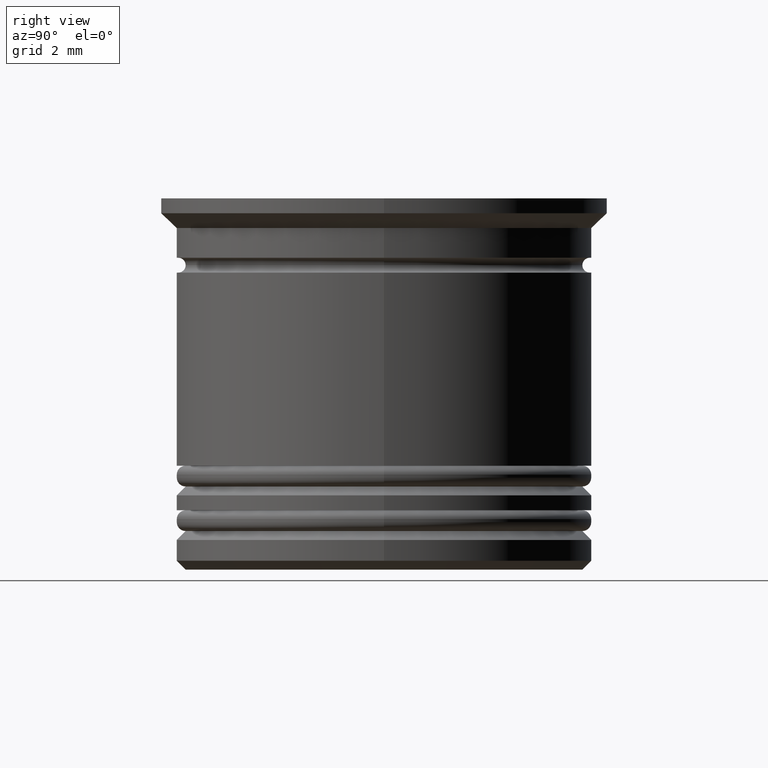
[diagram: clean part render]
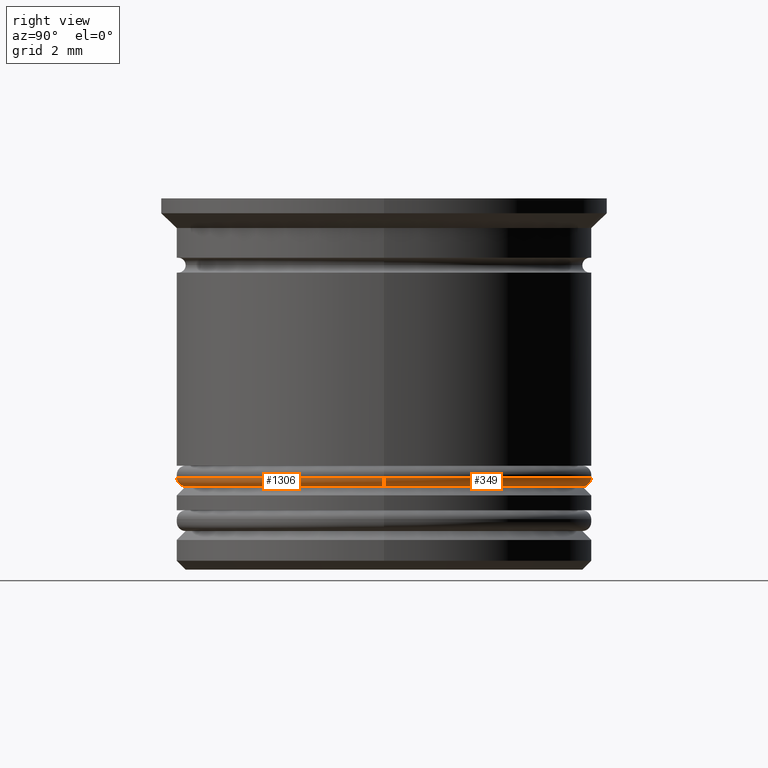
[diagram: same view with one multi-face feature highlighted, each face labeled with its STEP entity id]
A machine part, right view. The highlighted faces form ONE feature: a constant-radius fillet chain: 2 tangent blend faces with common blend radius 0.3 mm. The faces share edges in the B-rep.
Their STEP definitions:
[1] entity #349 (Torus):
#55 = EDGE_CURVE ( 'NONE', #867, #1171, #1804, .T. ) ;
#67 = CIRCLE ( 'NONE', #906, 0.2999999999999999334 ) ;
#73 = DIRECTION ( 'NONE',  ( 0.000000000000000000, -1.000000000000000000, 0.000000000000000000 ) ) ;
#84 = DIRECTION ( 'NONE',  ( 0.000000000000000000, 0.000000000000000000, -1.000000000000000000 ) ) ;
#194 = CARTESIAN_POINT ( 'NONE',  ( -6.700000000000001066, 8.388830574159370862E-16, -9.700000000000006395 ) ) ;
#336 = DIRECTION ( 'NONE',  ( 1.000000000000000000, 0.000000000000000000, 0.000000000000000000 ) ) ;
#349 = ADVANCED_FACE ( 'NONE', ( #605 ), #671, .T. ) ;
#370 = ORIENTED_EDGE ( 'NONE', *, *, #55, .F. ) ;
#372 = CARTESIAN_POINT ( 'NONE',  ( 6.700000000000001066, 0.000000000000000000, -9.400000000000009237 ) ) ;
#472 = CARTESIAN_POINT ( 'NONE',  ( 0.000000000000000000, 0.000000000000000000, -9.400000000000009237 ) ) ;
#540 = CARTESIAN_POINT ( 'NONE',  ( 7.000000000000000888, 0.000000000000000000, -9.400000000000009237 ) ) ;
#582 = CARTESIAN_POINT ( 'NONE',  ( -7.000000000000000888, 8.572527594031474176E-16, -9.400000000000009237 ) ) ;
#584 = AXIS2_PLACEMENT_3D ( 'NONE', #472, #1210, #1073 ) ;
#605 = FACE_OUTER_BOUND ( 'NONE', #1119, .T. ) ;
#660 = ORIENTED_EDGE ( 'NONE', *, *, #1467, .F. ) ;
#671 = TOROIDAL_SURFACE ( 'NONE', #1673, 6.700000000000001066, 0.2999999999999999889 ) ;
#682 = CIRCLE ( 'NONE', #1903, 0.2999999999999999334 ) ;
#867 = VERTEX_POINT ( 'NONE', #194 ) ;
#873 = CARTESIAN_POINT ( 'NONE',  ( -6.700000000000001066, 8.205133554287267548E-16, -9.400000000000009237 ) ) ;
#906 = AXIS2_PLACEMENT_3D ( 'NONE', #372, #73, #84 ) ;
#1073 = DIRECTION ( 'NONE',  ( 1.000000000000000000, 0.000000000000000000, 0.000000000000000000 ) ) ;
#1097 = ORIENTED_EDGE ( 'NONE', *, *, #1221, .F. ) ;
#1119 = EDGE_LOOP ( 'NONE', ( #370, #1910, #1097, #660 ) ) ;
#1171 = VERTEX_POINT ( 'NONE', #1676 ) ;
#1210 = DIRECTION ( 'NONE',  ( 0.000000000000000000, 0.000000000000000000, 1.000000000000000000 ) ) ;
#1221 = EDGE_CURVE ( 'NONE', #1473, #1784, #1741, .T. ) ;
#1467 = EDGE_CURVE ( 'NONE', #1171, #1473, #67, .T. ) ;
#1473 = VERTEX_POINT ( 'NONE', #540 ) ;
#1519 = DIRECTION ( 'NONE',  ( 0.000000000000000000, 0.000000000000000000, 1.000000000000000000 ) ) ;
#1599 = DIRECTION ( 'NONE',  ( -1.000000000000000000, 1.224646799147353207E-16, 0.000000000000000000 ) ) ;
#1673 = AXIS2_PLACEMENT_3D ( 'NONE', #1849, #1519, #336 ) ;
#1676 = CARTESIAN_POINT ( 'NONE',  ( 6.700000000000001066, 0.000000000000000000, -9.700000000000006395 ) ) ;
#1741 = CIRCLE ( 'NONE', #584, 7.000000000000000888 ) ;
#1754 = DIRECTION ( 'NONE',  ( 1.224646799147353207E-16, 1.000000000000000000, -0.000000000000000000 ) ) ;
#1784 = VERTEX_POINT ( 'NONE', #582 ) ;
#1798 = CARTESIAN_POINT ( 'NONE',  ( 0.000000000000000000, 0.000000000000000000, -9.700000000000006395 ) ) ;
#1804 = CIRCLE ( 'NONE', #1831, 6.700000000000001066 ) ;
#1831 = AXIS2_PLACEMENT_3D ( 'NONE', #1798, #1952, #1946 ) ;
#1849 = CARTESIAN_POINT ( 'NONE',  ( 0.000000000000000000, 0.000000000000000000, -9.400000000000009237 ) ) ;
#1903 = AXIS2_PLACEMENT_3D ( 'NONE', #873, #1754, #1599 ) ;
#1910 = ORIENTED_EDGE ( 'NONE', *, *, #1920, .T. ) ;
#1920 = EDGE_CURVE ( 'NONE', #867, #1784, #682, .T. ) ;
#1946 = DIRECTION ( 'NONE',  ( 1.000000000000000000, 0.000000000000000000, 0.000000000000000000 ) ) ;
#1952 = DIRECTION ( 'NONE',  ( -0.000000000000000000, -0.000000000000000000, -1.000000000000000000 ) ) ;
[2] entity #1306 (Torus):
#28 = TOROIDAL_SURFACE ( 'NONE', #1406, 6.700000000000001066, 0.2999999999999999889 ) ;
#44 = FACE_OUTER_BOUND ( 'NONE', #1489, .T. ) ;
#67 = CIRCLE ( 'NONE', #906, 0.2999999999999999334 ) ;
#73 = DIRECTION ( 'NONE',  ( 0.000000000000000000, -1.000000000000000000, 0.000000000000000000 ) ) ;
#81 = ORIENTED_EDGE ( 'NONE', *, *, #1493, .F. ) ;
#84 = DIRECTION ( 'NONE',  ( 0.000000000000000000, 0.000000000000000000, -1.000000000000000000 ) ) ;
#177 = ORIENTED_EDGE ( 'NONE', *, *, #1467, .T. ) ;
#194 = CARTESIAN_POINT ( 'NONE',  ( -6.700000000000001066, 8.388830574159370862E-16, -9.700000000000006395 ) ) ;
#250 = CARTESIAN_POINT ( 'NONE',  ( 0.000000000000000000, 0.000000000000000000, -9.700000000000006395 ) ) ;
#372 = CARTESIAN_POINT ( 'NONE',  ( 6.700000000000001066, 0.000000000000000000, -9.400000000000009237 ) ) ;
#381 = DIRECTION ( 'NONE',  ( 1.000000000000000000, 0.000000000000000000, 0.000000000000000000 ) ) ;
#402 = AXIS2_PLACEMENT_3D ( 'NONE', #250, #1464, #381 ) ;
#540 = CARTESIAN_POINT ( 'NONE',  ( 7.000000000000000888, 0.000000000000000000, -9.400000000000009237 ) ) ;
#582 = CARTESIAN_POINT ( 'NONE',  ( -7.000000000000000888, 8.572527594031474176E-16, -9.400000000000009237 ) ) ;
#629 = CARTESIAN_POINT ( 'NONE',  ( 0.000000000000000000, 0.000000000000000000, -9.400000000000009237 ) ) ;
#682 = CIRCLE ( 'NONE', #1903, 0.2999999999999999334 ) ;
#807 = CIRCLE ( 'NONE', #1935, 7.000000000000000888 ) ;
#867 = VERTEX_POINT ( 'NONE', #194 ) ;
#873 = CARTESIAN_POINT ( 'NONE',  ( -6.700000000000001066, 8.205133554287267548E-16, -9.400000000000009237 ) ) ;
#906 = AXIS2_PLACEMENT_3D ( 'NONE', #372, #73, #84 ) ;
#1122 = CARTESIAN_POINT ( 'NONE',  ( 0.000000000000000000, 0.000000000000000000, -9.400000000000009237 ) ) ;
#1171 = VERTEX_POINT ( 'NONE', #1676 ) ;
#1240 = DIRECTION ( 'NONE',  ( 0.000000000000000000, 0.000000000000000000, 1.000000000000000000 ) ) ;
#1281 = DIRECTION ( 'NONE',  ( 1.000000000000000000, 0.000000000000000000, 0.000000000000000000 ) ) ;
#1303 = ORIENTED_EDGE ( 'NONE', *, *, #1689, .F. ) ;
#1306 = ADVANCED_FACE ( 'NONE', ( #44 ), #28, .T. ) ;
#1406 = AXIS2_PLACEMENT_3D ( 'NONE', #1122, #1886, #1281 ) ;
#1438 = CIRCLE ( 'NONE', #402, 6.700000000000001066 ) ;
#1464 = DIRECTION ( 'NONE',  ( -0.000000000000000000, -0.000000000000000000, -1.000000000000000000 ) ) ;
#1467 = EDGE_CURVE ( 'NONE', #1171, #1473, #67, .T. ) ;
#1473 = VERTEX_POINT ( 'NONE', #540 ) ;
#1489 = EDGE_LOOP ( 'NONE', ( #1614, #81, #177, #1303 ) ) ;
#1493 = EDGE_CURVE ( 'NONE', #1171, #867, #1438, .T. ) ;
#1599 = DIRECTION ( 'NONE',  ( -1.000000000000000000, 1.224646799147353207E-16, 0.000000000000000000 ) ) ;
#1614 = ORIENTED_EDGE ( 'NONE', *, *, #1920, .F. ) ;
#1676 = CARTESIAN_POINT ( 'NONE',  ( 6.700000000000001066, 0.000000000000000000, -9.700000000000006395 ) ) ;
#1689 = EDGE_CURVE ( 'NONE', #1784, #1473, #807, .T. ) ;
#1754 = DIRECTION ( 'NONE',  ( 1.224646799147353207E-16, 1.000000000000000000, -0.000000000000000000 ) ) ;
#1784 = VERTEX_POINT ( 'NONE', #582 ) ;
#1866 = DIRECTION ( 'NONE',  ( 1.000000000000000000, 0.000000000000000000, 0.000000000000000000 ) ) ;
#1886 = DIRECTION ( 'NONE',  ( 0.000000000000000000, 0.000000000000000000, 1.000000000000000000 ) ) ;
#1903 = AXIS2_PLACEMENT_3D ( 'NONE', #873, #1754, #1599 ) ;
#1920 = EDGE_CURVE ( 'NONE', #867, #1784, #682, .T. ) ;
#1935 = AXIS2_PLACEMENT_3D ( 'NONE', #629, #1240, #1866 ) ;